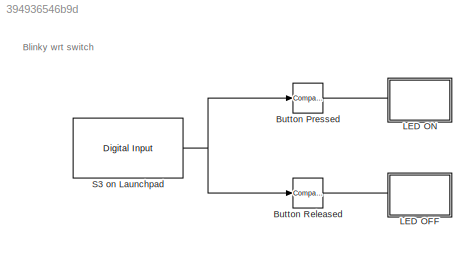
MODEL slx_394936546b9d
KIND model
CONFIG AbsTol = auto
CONFIG EnableMultiTasking = on
CONFIG FixedStep = auto
CONFIG MaxStep = auto
CONFIG MinStep = auto
CONFIG RelTol = 1e-3
CONFIG SampleTimeConstraint = Unconstrained
CONFIG Solver = FixedStepDiscrete
CONFIG SolverName = FixedStepDiscrete
CONFIG StartTime = 0.0
CONFIG StopTime = 10.0
BLOCK [Reference] Button Pressed  REF=simulink/Logic and Bit
Operations/Compare
To Constant
  Ports = [1, 1]
  SourceBlock = simulink/Logic and Bit\nOperations/Compare\nTo Constant
  SourceType = Compare To Constant
BLOCK [Reference] Button Released  REF=simulink/Logic and Bit
Operations/Compare
To Constant
  Ports = [1, 1]
  SourceBlock = simulink/Logic and Bit\nOperations/Compare\nTo Constant
  SourceType = Compare To Constant
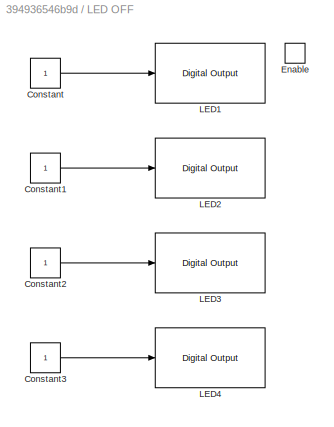
BLOCK [SubSystem] LED OFF
  Ports = [0, 0, 1]
  RequestExecContextInheritance = off
  Variant = off
BLOCK [Constant] LED OFF/Constant
  OutDataTypeStr = boolean
BLOCK [Constant] LED OFF/Constant1
  OutDataTypeStr = boolean
BLOCK [Constant] LED OFF/Constant2
  OutDataTypeStr = boolean
BLOCK [Constant] LED OFF/Constant3
  OutDataTypeStr = boolean
BLOCK [EnablePort] LED OFF/Enable
  Ports = []
BLOCK [Reference] LED OFF/LED1  REF=c2802xlib/Digital Output
  Ports = [1]
  SourceBlock = c2802xlib/Digital Output
  SourceType = C2802x GPIO Digital Output
  UserDataPersistent = on
BLOCK [Reference] LED OFF/LED2  REF=c2802xlib/Digital Output
  Ports = [1]
  SourceBlock = c2802xlib/Digital Output
  SourceType = C2802x GPIO Digital Output
  UserDataPersistent = on
BLOCK [Reference] LED OFF/LED3  REF=c2802xlib/Digital Output
  Ports = [1]
  SourceBlock = c2802xlib/Digital Output
  SourceType = C2802x GPIO Digital Output
  UserDataPersistent = on
BLOCK [Reference] LED OFF/LED4  REF=c2802xlib/Digital Output
  Ports = [1]
  SourceBlock = c2802xlib/Digital Output
  SourceType = C2802x GPIO Digital Output
  UserDataPersistent = on
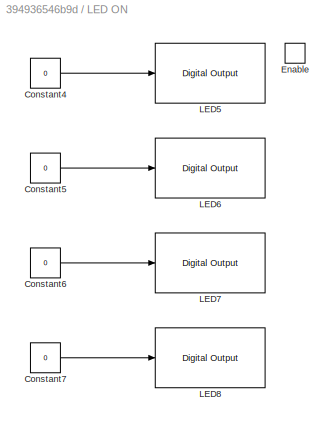
BLOCK [SubSystem] LED ON
  Ports = [0, 0, 1]
  RequestExecContextInheritance = off
  Variant = off
BLOCK [Constant] LED ON/Constant4
  OutDataTypeStr = boolean
  Value = 0
BLOCK [Constant] LED ON/Constant5
  OutDataTypeStr = boolean
  Value = 0
BLOCK [Constant] LED ON/Constant6
  OutDataTypeStr = boolean
  Value = 0
BLOCK [Constant] LED ON/Constant7
  OutDataTypeStr = boolean
  Value = 0
BLOCK [EnablePort] LED ON/Enable
  Ports = []
BLOCK [Reference] LED ON/LED5  REF=c2802xlib/Digital Output
  Ports = [1]
  SourceBlock = c2802xlib/Digital Output
  SourceType = C2802x GPIO Digital Output
  UserDataPersistent = on
BLOCK [Reference] LED ON/LED6  REF=c2802xlib/Digital Output
  Ports = [1]
  SourceBlock = c2802xlib/Digital Output
  SourceType = C2802x GPIO Digital Output
  UserDataPersistent = on
BLOCK [Reference] LED ON/LED7  REF=c2802xlib/Digital Output
  Ports = [1]
  SourceBlock = c2802xlib/Digital Output
  SourceType = C2802x GPIO Digital Output
  UserDataPersistent = on
BLOCK [Reference] LED ON/LED8  REF=c2802xlib/Digital Output
  Ports = [1]
  SourceBlock = c2802xlib/Digital Output
  SourceType = C2802x GPIO Digital Output
  UserDataPersistent = on
BLOCK [Reference] S3 on Launchpad  REF=c2802xlib/Digital Input
  Ports = [0, 1]
  SourceBlock = c2802xlib/Digital Input
  SourceType = C2802x GPIO Digital Input
  UserDataPersistent = on
ANNOTATION (root): Blinky wrt switch
LINE Button Pressed:1 -> LED ON:enable
LINE Button Released:1 -> LED OFF:enable
LINE LED OFF/Constant1:1 -> LED OFF/LED2:1
LINE LED OFF/Constant2:1 -> LED OFF/LED3:1
LINE LED OFF/Constant3:1 -> LED OFF/LED4:1
LINE LED OFF/Constant:1 -> LED OFF/LED1:1
LINE LED ON/Constant4:1 -> LED ON/LED5:1
LINE LED ON/Constant5:1 -> LED ON/LED6:1
LINE LED ON/Constant6:1 -> LED ON/LED7:1
LINE LED ON/Constant7:1 -> LED ON/LED8:1
NET S3 on Launchpad:1 -> Button Pressed:1, Button Released:1
note: NET lines group one-source signal fan-out (src -> all destinations, sorted); 1:1 wires keep LINE
